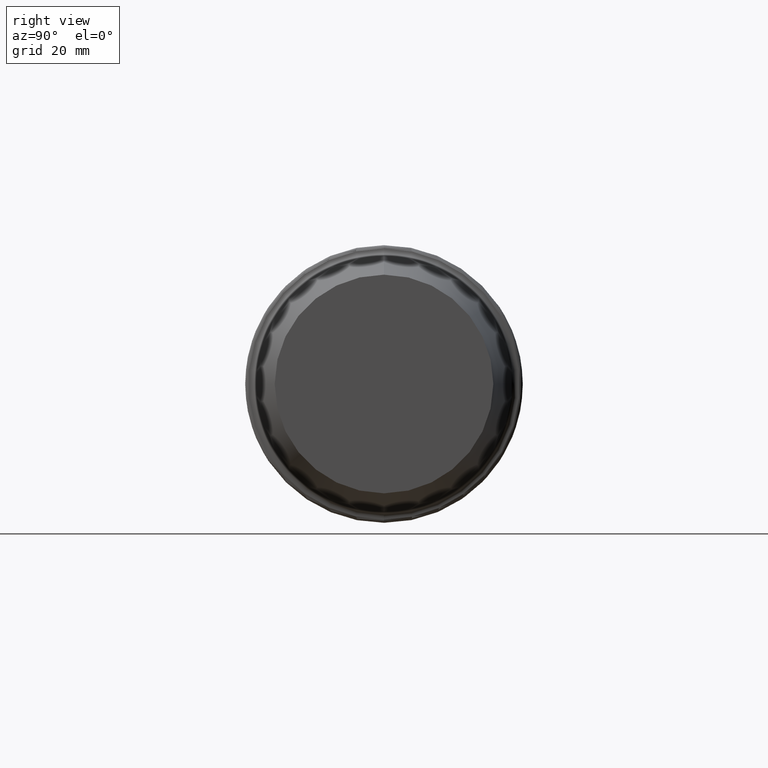
[diagram: clean part render]
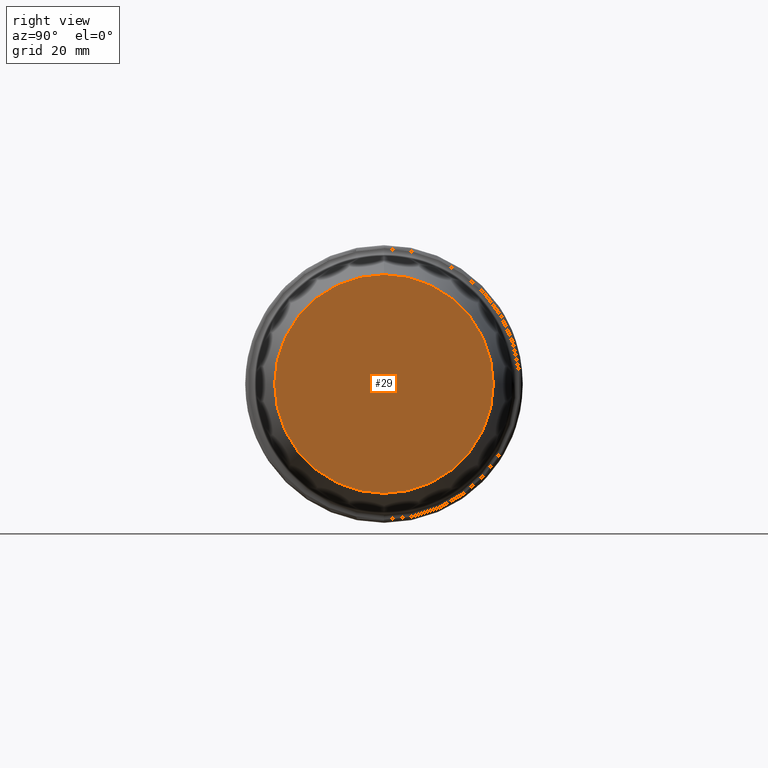
[diagram: same view with one face highlighted and labeled with its STEP entity id]
A machine part, right view. The second image highlights one B-rep face of the part: STEP entity #29.
In plain terms, the highlighted planar face has unit normal (-1, 0, 0).
Its self-contained STEP definition (entity closure, byte-faithful):
#29 = ADVANCED_FACE ( 'NONE', ( #271 ), #316, .F. ) ;
#33 = CARTESIAN_POINT ( 'NONE',  ( 129.8176255202773746, 0.000000000000000000, 0.000000000000000000 ) ) ;
#120 = DIRECTION ( 'NONE',  ( -1.000000000000000000, 0.000000000000000000, 0.000000000000000000 ) ) ;
#135 = VERTEX_POINT ( 'NONE', #400 ) ;
#171 = EDGE_LOOP ( 'NONE', ( #460, #305 ) ) ;
#220 = CARTESIAN_POINT ( 'NONE',  ( 129.8176255202773746, 0.000000000000000000, 0.000000000000000000 ) ) ;
#235 = EDGE_CURVE ( 'NONE', #312, #135, #503, .T. ) ;
#237 = DIRECTION ( 'NONE',  ( 0.000000000000000000, 0.000000000000000000, 1.000000000000000000 ) ) ;
#238 = AXIS2_PLACEMENT_3D ( 'NONE', #220, #120, #301 ) ;
#271 = FACE_OUTER_BOUND ( 'NONE', #171, .T. ) ;
#299 = CIRCLE ( 'NONE', #362, 31.49999997253168615 ) ;
#301 = DIRECTION ( 'NONE',  ( 0.000000000000000000, 0.000000000000000000, 1.000000000000000000 ) ) ;
#305 = ORIENTED_EDGE ( 'NONE', *, *, #532, .F. ) ;
#312 = VERTEX_POINT ( 'NONE', #470 ) ;
#316 = PLANE ( 'NONE',  #353 ) ;
#322 = DIRECTION ( 'NONE',  ( -1.000000000000000000, 0.000000000000000000, 0.000000000000000000 ) ) ;
#351 = CARTESIAN_POINT ( 'NONE',  ( 129.8176255202773746, 0.000000000000000000, 0.000000000000000000 ) ) ;
#353 = AXIS2_PLACEMENT_3D ( 'NONE', #351, #322, #237 ) ;
#362 = AXIS2_PLACEMENT_3D ( 'NONE', #33, #523, #483 ) ;
#400 = CARTESIAN_POINT ( 'NONE',  ( 129.8176255202773746, 4.188038666898672585E-15, -31.49999997253168615 ) ) ;
#460 = ORIENTED_EDGE ( 'NONE', *, *, #235, .F. ) ;
#470 = CARTESIAN_POINT ( 'NONE',  ( 129.8176255202773746, 0.000000000000000000, 31.49999997253168615 ) ) ;
#483 = DIRECTION ( 'NONE',  ( 0.000000000000000000, 0.000000000000000000, 1.000000000000000000 ) ) ;
#503 = CIRCLE ( 'NONE', #238, 31.49999997253168615 ) ;
#523 = DIRECTION ( 'NONE',  ( -1.000000000000000000, 0.000000000000000000, 0.000000000000000000 ) ) ;
#532 = EDGE_CURVE ( 'NONE', #135, #312, #299, .T. ) ;